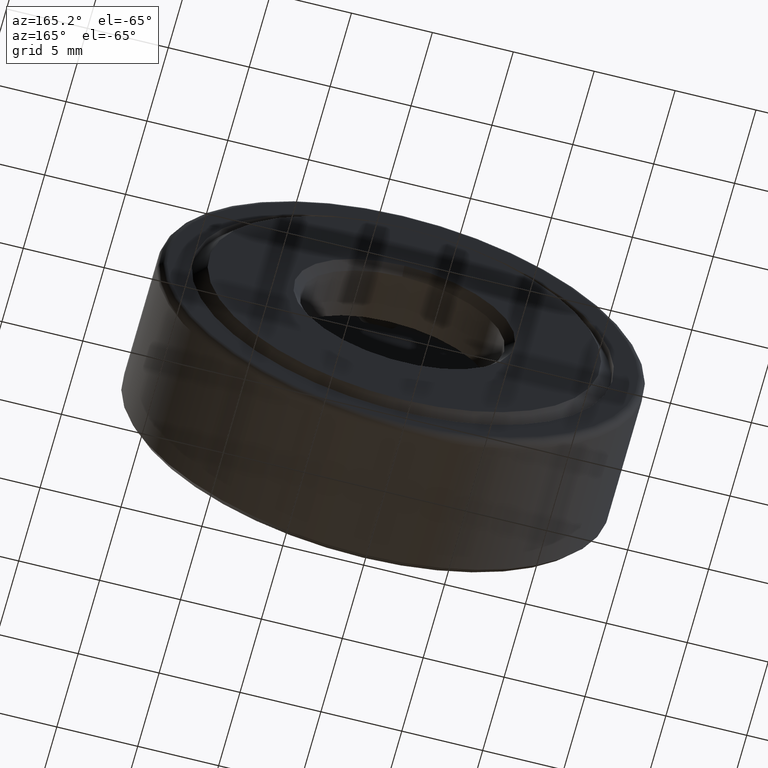
[diagram: clean part render]
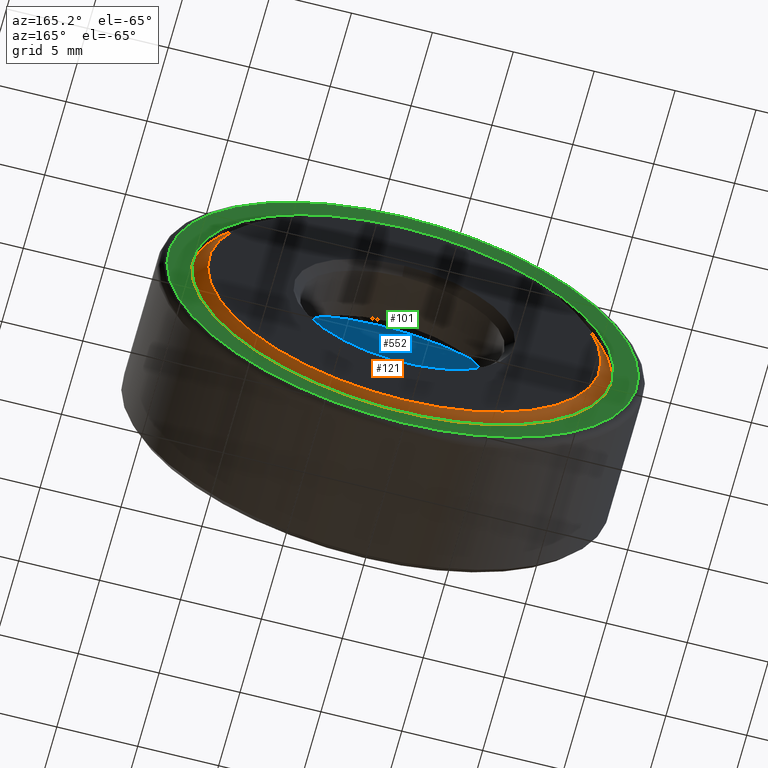
[diagram: same view with three faces highlighted in distinct colors, each labeled with its STEP entity id]
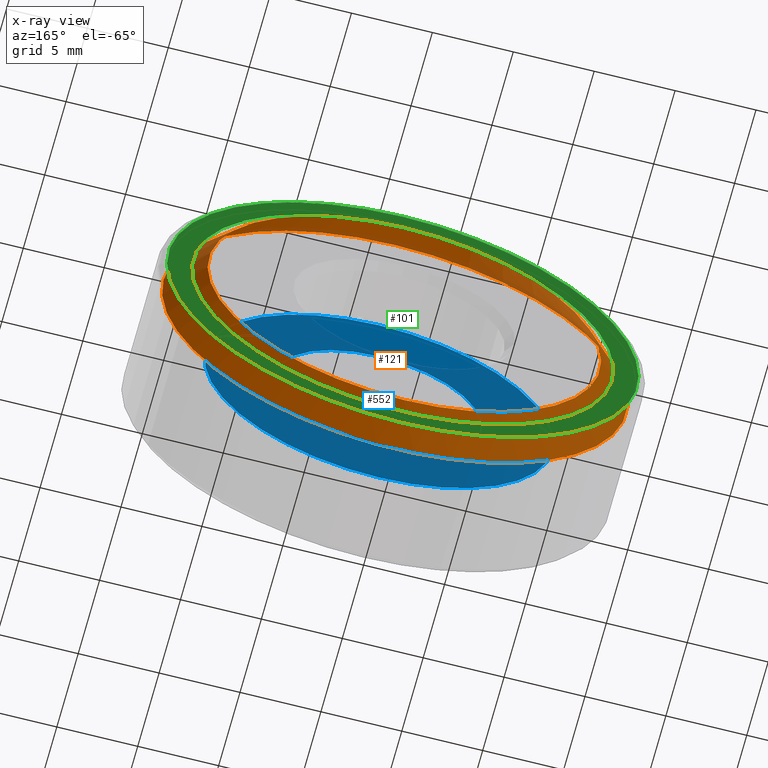
[diagram: x-ray of the same camera — body ghosted, the three highlighted faces saturated]
A machine part, auxiliary view with three faces highlighted in distinct colors.
The next image is the same camera in x-ray (body ghosted, the three faces saturated) — at least one of them is partly hidden behind the body in this view.
Their STEP definitions:

[orange] entity #121 — the highlighted conical surface has half-angle 45 deg.
#10 = EDGE_CURVE ( 'NONE', #118, #118, #107, .T. ) ;
#57 = EDGE_CURVE ( 'NONE', #350, #350, #75, .T. ) ;
#75 = CIRCLE ( 'NONE', #504, 0.5667499999999998600 ) ;
#76 = CARTESIAN_POINT ( 'NONE',  ( 0.0000000000000000000, 0.3750000000000000600, 0.4787499999999997900 ) ) ;
#88 = EDGE_LOOP ( 'NONE', ( #120 ) ) ;
#107 = CIRCLE ( 'NONE', #388, 0.4787499999999997900 ) ;
#118 = VERTEX_POINT ( 'NONE', #76 ) ;
#120 = ORIENTED_EDGE ( 'NONE', *, *, #10, .F. ) ;
#121 = ADVANCED_FACE ( 'NONE', ( #460, #342 ), #153, .T. ) ;
#153 = CONICAL_SURFACE ( 'NONE', #537, 0.4787499999999997900, 0.7853981633974498300 ) ;
#172 = DIRECTION ( 'NONE',  ( 0.0000000000000000000, 0.0000000000000000000, -1.000000000000000000 ) ) ;
#306 = DIRECTION ( 'NONE',  ( -0.0000000000000000000, 1.000000000000000000, -0.0000000000000000000 ) ) ;
#342 = FACE_BOUND ( 'NONE', #88, .T. ) ;
#343 = ORIENTED_EDGE ( 'NONE', *, *, #57, .T. ) ;
#350 = VERTEX_POINT ( 'NONE', #478 ) ;
#352 = CARTESIAN_POINT ( 'NONE',  ( 0.0000000000000000000, 0.3750000000000000600, 0.0000000000000000000 ) ) ;
#356 = DIRECTION ( 'NONE',  ( -0.0000000000000000000, 1.000000000000000000, -0.0000000000000000000 ) ) ;
#359 = DIRECTION ( 'NONE',  ( 0.0000000000000000000, 0.0000000000000000000, 1.000000000000000000 ) ) ;
#388 = AXIS2_PLACEMENT_3D ( 'NONE', #447, #356, #359 ) ;
#401 = CARTESIAN_POINT ( 'NONE',  ( 0.0000000000000000000, 0.2870000000000002000, 0.0000000000000000000 ) ) ;
#447 = CARTESIAN_POINT ( 'NONE',  ( 0.0000000000000000000, 0.3750000000000000600, 0.0000000000000000000 ) ) ;
#449 = EDGE_LOOP ( 'NONE', ( #343 ) ) ;
#460 = FACE_OUTER_BOUND ( 'NONE', #449, .T. ) ;
#478 = CARTESIAN_POINT ( 'NONE',  ( 0.0000000000000000000, 0.2870000000000002000, 0.5667499999999998600 ) ) ;
#488 = DIRECTION ( 'NONE',  ( 0.0000000000000000000, -1.000000000000000000, 0.0000000000000000000 ) ) ;
#504 = AXIS2_PLACEMENT_3D ( 'NONE', #401, #306, #593 ) ;
#537 = AXIS2_PLACEMENT_3D ( 'NONE', #352, #488, #172 ) ;
#593 = DIRECTION ( 'NONE',  ( 0.0000000000000000000, 0.0000000000000000000, 1.000000000000000000 ) ) ;

[blue] entity #552 — the highlighted planar face has unit normal (0, -1, 0).
#16 = EDGE_LOOP ( 'NONE', ( #564 ) ) ;
#37 = VERTEX_POINT ( 'NONE', #405 ) ;
#46 = FACE_OUTER_BOUND ( 'NONE', #455, .T. ) ;
#70 = DIRECTION ( 'NONE',  ( 0.0000000000000000000, -1.000000000000000000, 0.0000000000000000000 ) ) ;
#85 = CIRCLE ( 'NONE', #568, 0.2500000000000000000 ) ;
#105 = CIRCLE ( 'NONE', #495, 0.4241249999999998100 ) ;
#160 = DIRECTION ( 'NONE',  ( 0.0000000000000000000, 0.0000000000000000000, 1.000000000000000000 ) ) ;
#207 = ORIENTED_EDGE ( 'NONE', *, *, #245, .T. ) ;
#210 = CARTESIAN_POINT ( 'NONE',  ( -2.757832908176868700E-017, 0.1406250000000000800, 0.0000000000000000000 ) ) ;
#245 = EDGE_CURVE ( 'NONE', #471, #471, #105, .T. ) ;
#302 = CARTESIAN_POINT ( 'NONE',  ( 0.0000000000000000000, 0.1406250000000000600, 0.4241249999999998100 ) ) ;
#307 = DIRECTION ( 'NONE',  ( -0.0000000000000000000, 1.000000000000000000, -0.0000000000000000000 ) ) ;
#340 = PLANE ( 'NONE',  #403 ) ;
#364 = DIRECTION ( 'NONE',  ( -0.0000000000000000000, 1.000000000000000000, -0.0000000000000000000 ) ) ;
#370 = CARTESIAN_POINT ( 'NONE',  ( 0.0000000000000000000, 0.1406250000000000600, 0.0000000000000000000 ) ) ;
#403 = AXIS2_PLACEMENT_3D ( 'NONE', #210, #70, #483 ) ;
#405 = CARTESIAN_POINT ( 'NONE',  ( 0.0000000000000000000, 0.1406250000000000800, 0.2500000000000000000 ) ) ;
#439 = CARTESIAN_POINT ( 'NONE',  ( 0.0000000000000000000, 0.1406250000000000800, 0.0000000000000000000 ) ) ;
#455 = EDGE_LOOP ( 'NONE', ( #207 ) ) ;
#456 = DIRECTION ( 'NONE',  ( 0.0000000000000000000, 0.0000000000000000000, 1.000000000000000000 ) ) ;
#471 = VERTEX_POINT ( 'NONE', #302 ) ;
#483 = DIRECTION ( 'NONE',  ( 0.0000000000000000000, -0.0000000000000000000, -1.000000000000000000 ) ) ;
#495 = AXIS2_PLACEMENT_3D ( 'NONE', #370, #364, #456 ) ;
#552 = ADVANCED_FACE ( 'NONE', ( #600, #46 ), #340, .F. ) ;
#561 = EDGE_CURVE ( 'NONE', #37, #37, #85, .T. ) ;
#564 = ORIENTED_EDGE ( 'NONE', *, *, #561, .F. ) ;
#568 = AXIS2_PLACEMENT_3D ( 'NONE', #439, #307, #160 ) ;
#600 = FACE_BOUND ( 'NONE', #16, .T. ) ;

[green] entity #101 — the highlighted planar face has unit normal (0, -1, 0).
#7 = DIRECTION ( 'NONE',  ( 0.0000000000000000000, 0.0000000000000000000, 1.000000000000000000 ) ) ;
#30 = PLANE ( 'NONE',  #416 ) ;
#49 = AXIS2_PLACEMENT_3D ( 'NONE', #329, #60, #7 ) ;
#60 = DIRECTION ( 'NONE',  ( -0.0000000000000000000, 1.000000000000000000, -0.0000000000000000000 ) ) ;
#82 = CARTESIAN_POINT ( 'NONE',  ( 0.0000000000000000000, 0.3599999999999999900, 0.0000000000000000000 ) ) ;
#101 = ADVANCED_FACE ( 'NONE', ( #235, #111 ), #30, .F. ) ;
#111 = FACE_OUTER_BOUND ( 'NONE', #517, .T. ) ;
#167 = VERTEX_POINT ( 'NONE', #349 ) ;
#186 = DIRECTION ( 'NONE',  ( -0.0000000000000000000, 1.000000000000000000, -0.0000000000000000000 ) ) ;
#228 = CIRCLE ( 'NONE', #528, 0.5737499999999999800 ) ;
#235 = FACE_BOUND ( 'NONE', #260, .T. ) ;
#244 = CARTESIAN_POINT ( 'NONE',  ( 0.0000000000000000000, 0.3599999999999999900, 0.0000000000000000000 ) ) ;
#260 = EDGE_LOOP ( 'NONE', ( #474 ) ) ;
#287 = DIRECTION ( 'NONE',  ( 0.0000000000000000000, 0.0000000000000000000, 1.000000000000000000 ) ) ;
#329 = CARTESIAN_POINT ( 'NONE',  ( 0.0000000000000000000, 0.3599999999999999900, 0.0000000000000000000 ) ) ;
#349 = CARTESIAN_POINT ( 'NONE',  ( 0.0000000000000000000, 0.3599999999999999900, 0.5137499999999999300 ) ) ;
#365 = EDGE_CURVE ( 'NONE', #167, #167, #576, .T. ) ;
#397 = EDGE_CURVE ( 'NONE', #518, #518, #228, .T. ) ;
#416 = AXIS2_PLACEMENT_3D ( 'NONE', #82, #486, #592 ) ;
#474 = ORIENTED_EDGE ( 'NONE', *, *, #365, .F. ) ;
#486 = DIRECTION ( 'NONE',  ( 0.0000000000000000000, -1.000000000000000000, 0.0000000000000000000 ) ) ;
#517 = EDGE_LOOP ( 'NONE', ( #538 ) ) ;
#518 = VERTEX_POINT ( 'NONE', #531 ) ;
#528 = AXIS2_PLACEMENT_3D ( 'NONE', #244, #186, #287 ) ;
#531 = CARTESIAN_POINT ( 'NONE',  ( 0.0000000000000000000, 0.3599999999999999900, 0.5737499999999999800 ) ) ;
#538 = ORIENTED_EDGE ( 'NONE', *, *, #397, .T. ) ;
#576 = CIRCLE ( 'NONE', #49, 0.5137499999999999300 ) ;
#592 = DIRECTION ( 'NONE',  ( 0.0000000000000000000, -0.0000000000000000000, -1.000000000000000000 ) ) ;